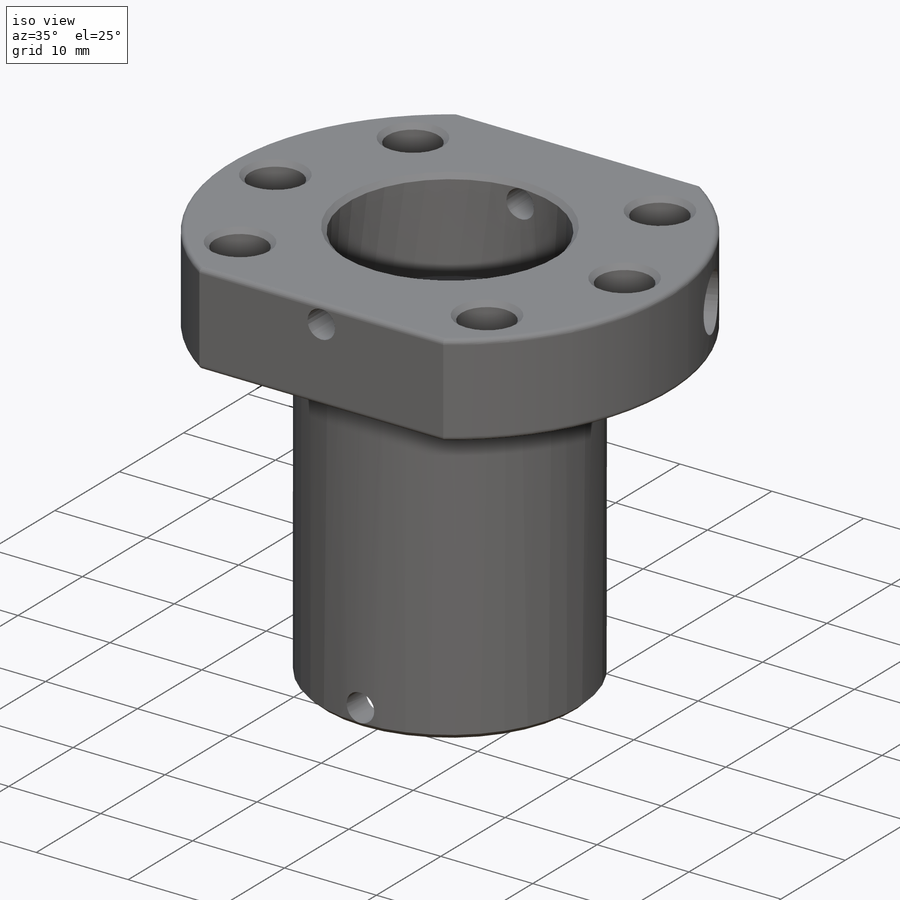
[diagram: iso view]
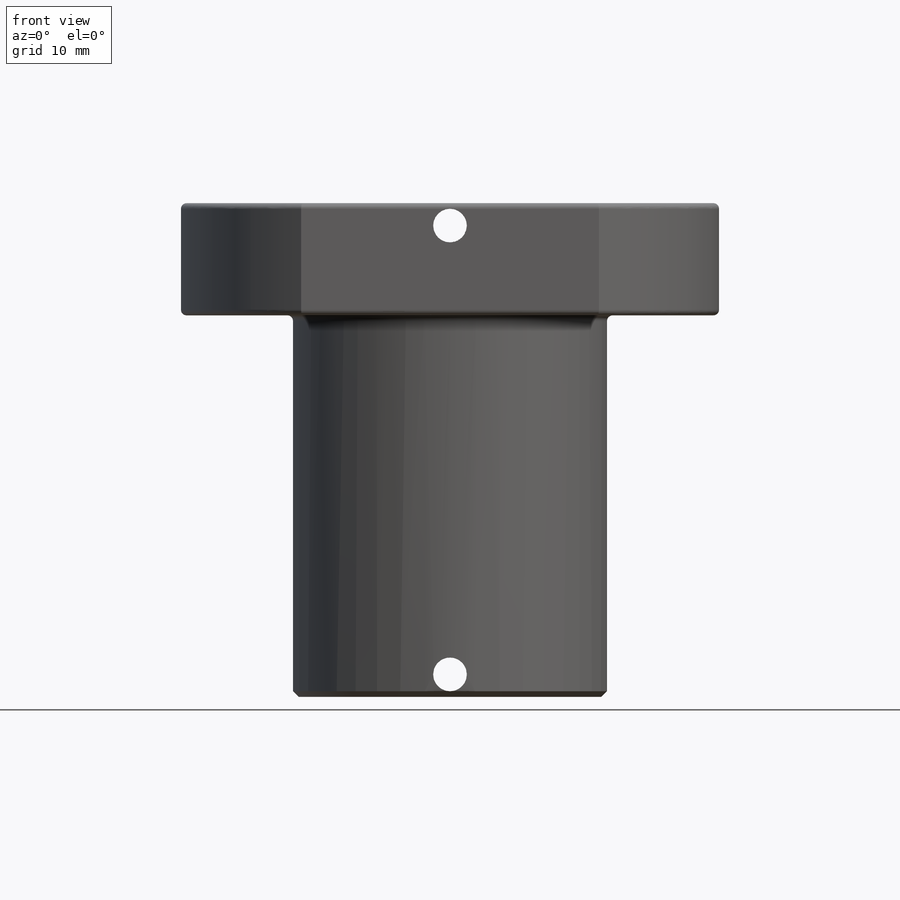
[diagram: front view]
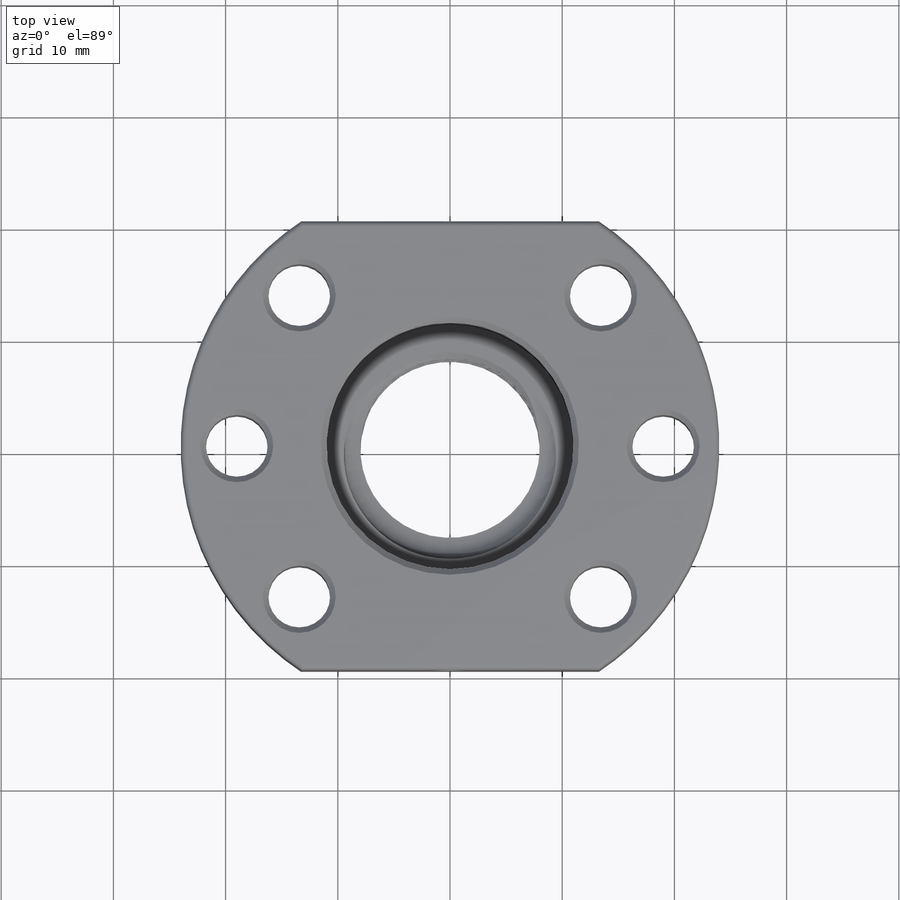
[diagram: top view]
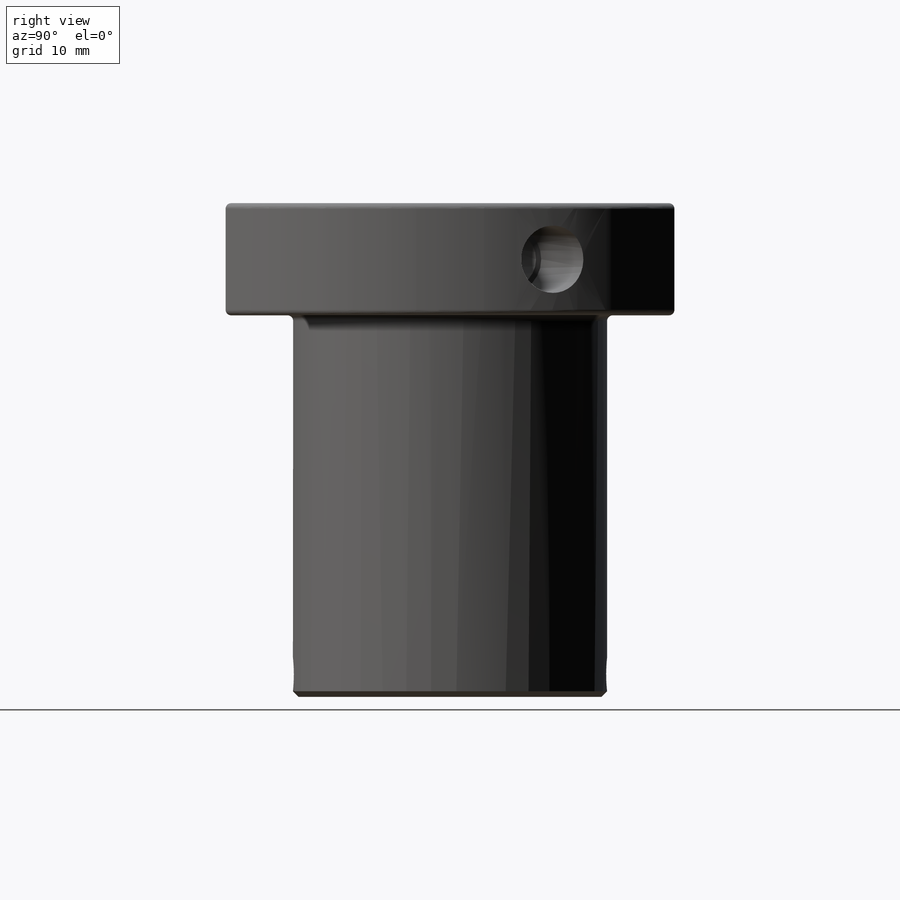
[diagram: right view]
SOLIDWORKS PART (.sldprt)
format: sldprt  version: not decoded by parser v0  size: 613,376 bytes
history: native  units: mm
features: sketch x10, cut_extrude x6, plane x3, material x1, revolve x1, chamfer x1, fillet x1, helix x1, sweep x1 (+11 scaffold rows collapsed)
feature tree (36):
  scaffold x11  (default folders/planes/origin — collapsed)
  material  "Material <not specified>"
  sketch  "Sketch1"  dims[Length=0.0mm D2=24.0mm D3=14.0mm D4=10.0mm D5=11.0mm D6=8.0mm D7=10.0mm]
  revolve  "Revolve1"  Angle=360deg
  sketch  "Sketch2"  dims[D2=48.0mm D1=40.0mm]
  cut_extrude  "Cut-Extrude2"  [1 undecoded]
  sketch  "Sketch3"
  sketch  "Sketch4"  dims[c1.D2=5.5mm c1.D1=19.0mm c1.D3=19.0mm c2.D3=45.0deg]
  cut_extrude  "Cut-Extrude3"  [1 undecoded]
  chamfer  "Chamfer1"  Distance=0.5mm Angle=45deg
  plane  "Plane1"
  sketch  "Sketch5"  dims[D1=5.0mm]
  cut_extrude  "Cut-Extrude4"  [1 undecoded]
  sketch  "Sketch6"  dims[D1=6.0mm]
  cut_extrude  "Cut-Extrude5"  Depth=10mm
  fillet  "Fillet1"  Radius=0.5mm
  plane  "Plane2"  Offset=0mm
  sketch  "Sketch7"  dims[D1=3.0mm D2=2.0mm]
  cut_extrude  "Cut-Extrude6"  [1 undecoded]
  plane  "Plane3"
  sketch  "Sketch8"  dims[D1=3.0mm D2=2.0mm]
  cut_extrude  "Cut-Extrude7"  Depth=28mm
  sketch  "Sketch9"
  helix  "Helix/Spiral1"  Pitch=44mm Height=44mm
  sketch  "Sketch10"  dims[D1=3.8mm]
  sweep  "Cut-Sweep1"
decode coverage: 14 of 21 modeling features carry decoded parameters
note: 4 parameter values undecoded
summary: no parameter record found for 4 features
note: suppression state not decoded; provenance and decode notes live in map.json
